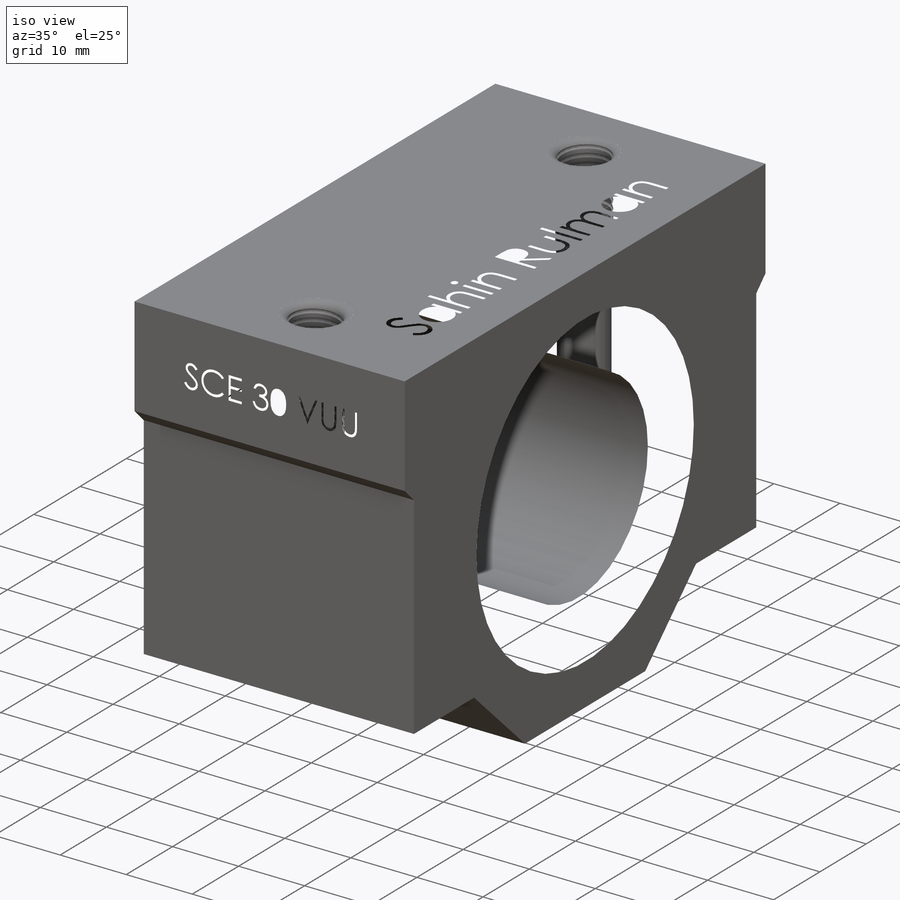
[diagram: iso view]
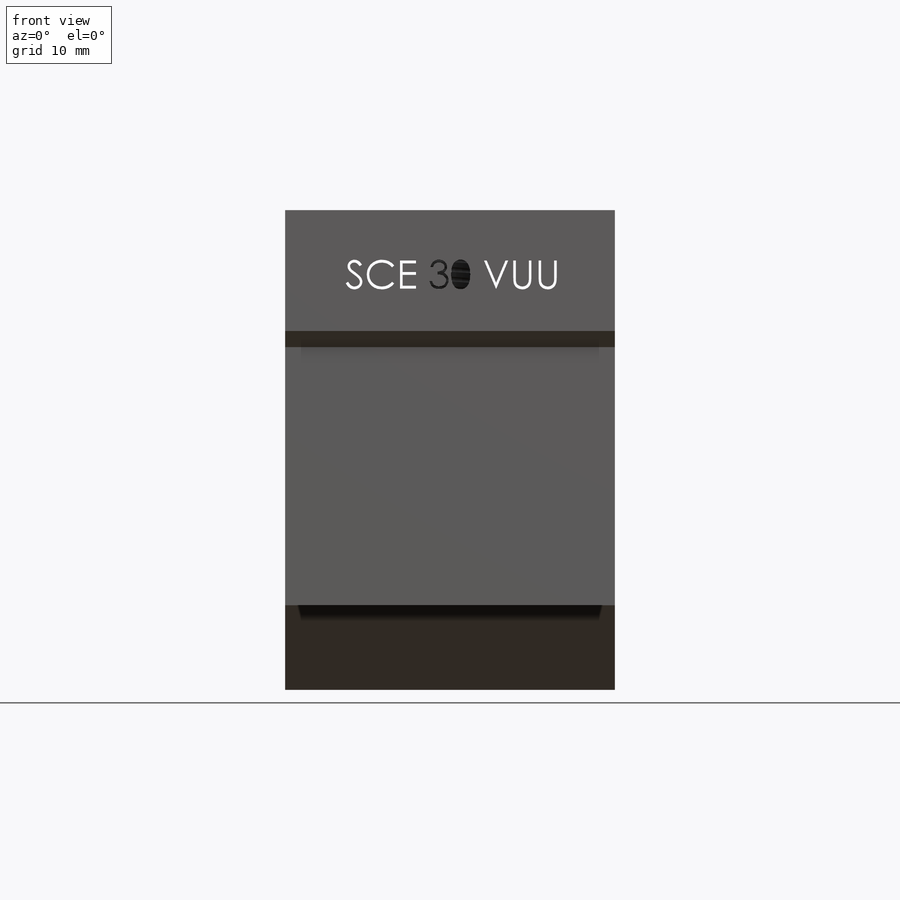
[diagram: front view]
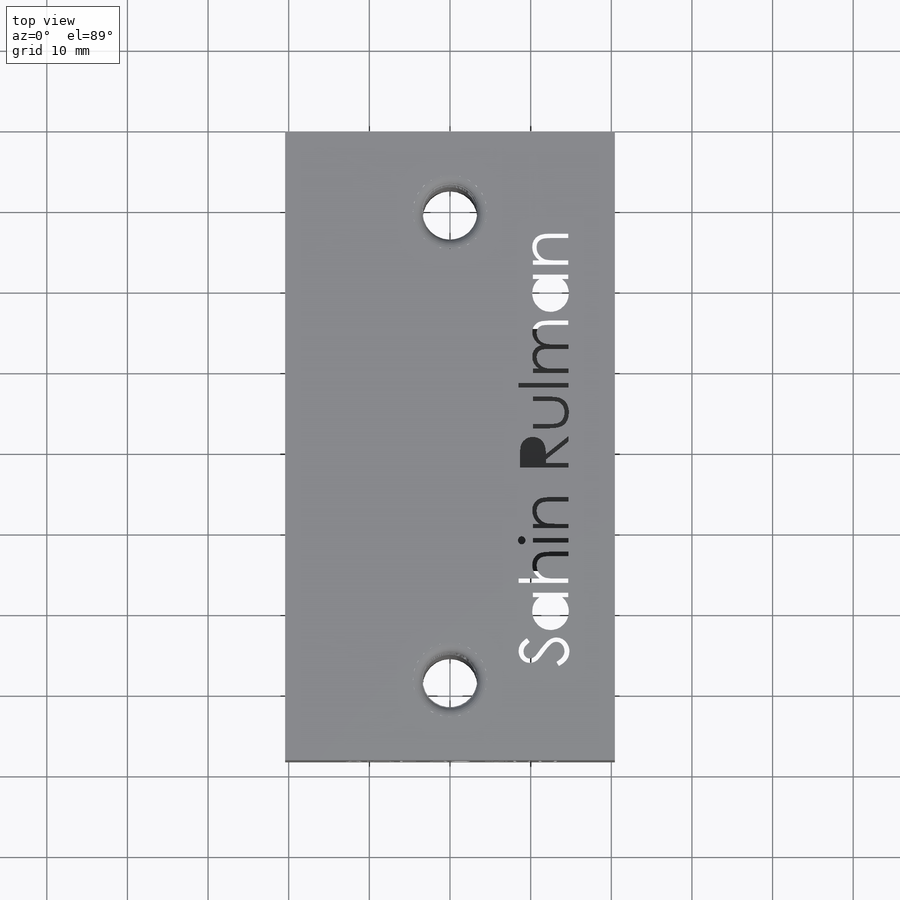
[diagram: top view]
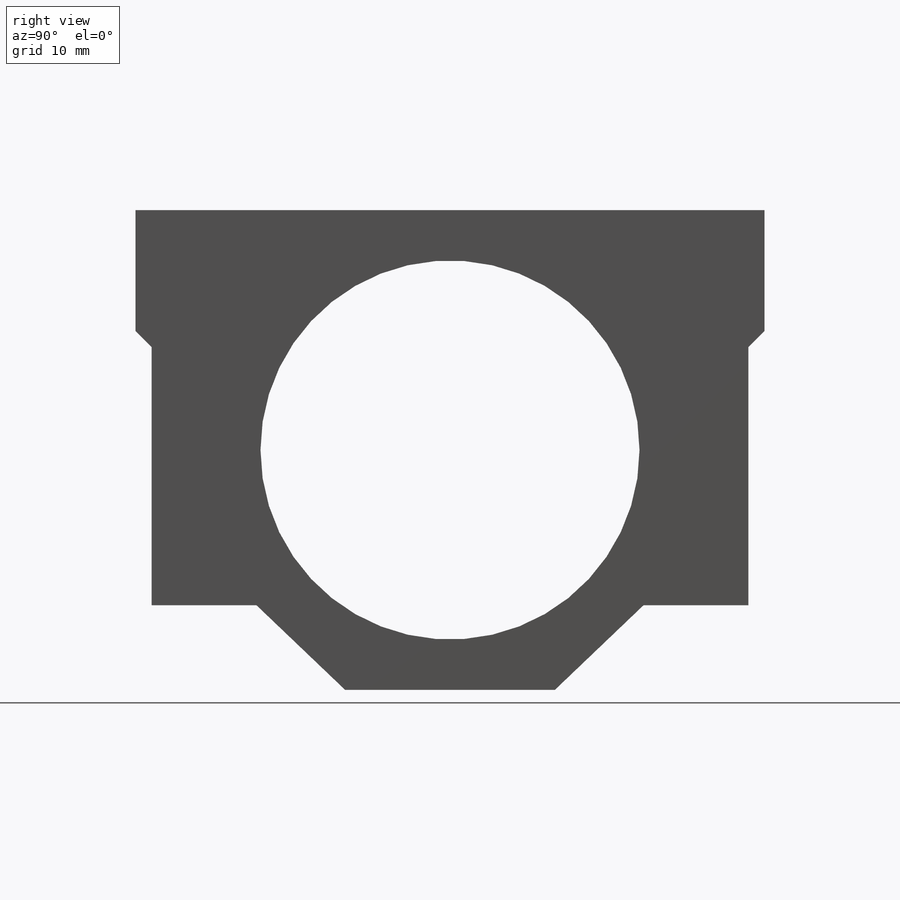
[diagram: right view]
SOLIDWORKS PART (.sldprt)
format: sldprt  version: not decoded by parser v0  size: 1,264,128 bytes
history: native  units: mm
features: sketch x8, cut_extrude x4, mirror x2, material x1, extrude x1, fillet x1, helix x1, plane x1, sweep x1 (+11 scaffold rows collapsed)
feature tree (31):
  scaffold x11  (default folders/planes/origin — collapsed)
  material  "Material <not specified>"
  sketch  "Sketch1"  dims[c1.D10=30.0mm c1.D1=78.0mm c1.D2=39.0mm c1.D3=2.0mm c1.D4=2.0mm c1.D5=15.0mm c1.D6=49.0mm c1.D7=59.5mm c1.D8=13.0mm c1.D9=13.0mm c2.D10=11.0mm c2.D11=29.75mm]
  extrude  "Boss-Extrude1"  Depth=40.9mm
  sketch  "Sketch2"  dims[D2=6.8mm D1=29.0mm]
  cut_extrude  "Cut-Extrude1"  [1 undecoded]
  fillet  "Fillet1"  Radius=1.2mm
  sketch  "Sketch3"
  helix  "Helix/Spiral1"  Pitch=18mm
  plane  "Plane1"
  sketch  "Sketch4"  dims[D1=0.6mm]
  sweep  "Cut-Sweep1"
  mirror  "Mirror1"
  sketch  "Sketch6"
  cut_extrude  "Cut-Extrude3"  Depth=1mm
  sketch  "Sketch7"  dims[D1=47.0mm]
  sketch  "Sketch8"
  sketch  "Sketch9"
  cut_extrude  "Cut-Extrude4"  Depth=2mm
  cut_extrude  "Cut-Extrude5"  Depth=1mm
  mirror  "Mirror2"
decode coverage: 10 of 18 modeling features carry decoded parameters
note: 1 parameter value undecoded
note: suppression state not decoded; provenance and decode notes live in map.json
